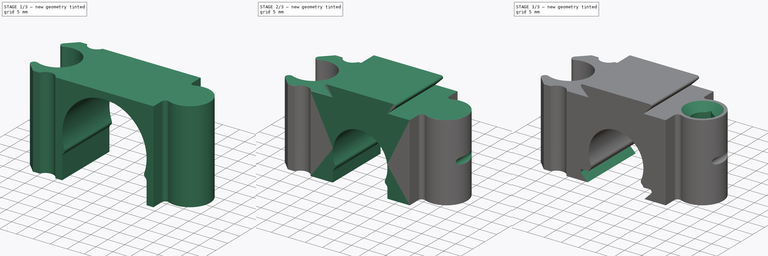
[diagram: build sequence overview — one tinted view per stage of 3, left to right]
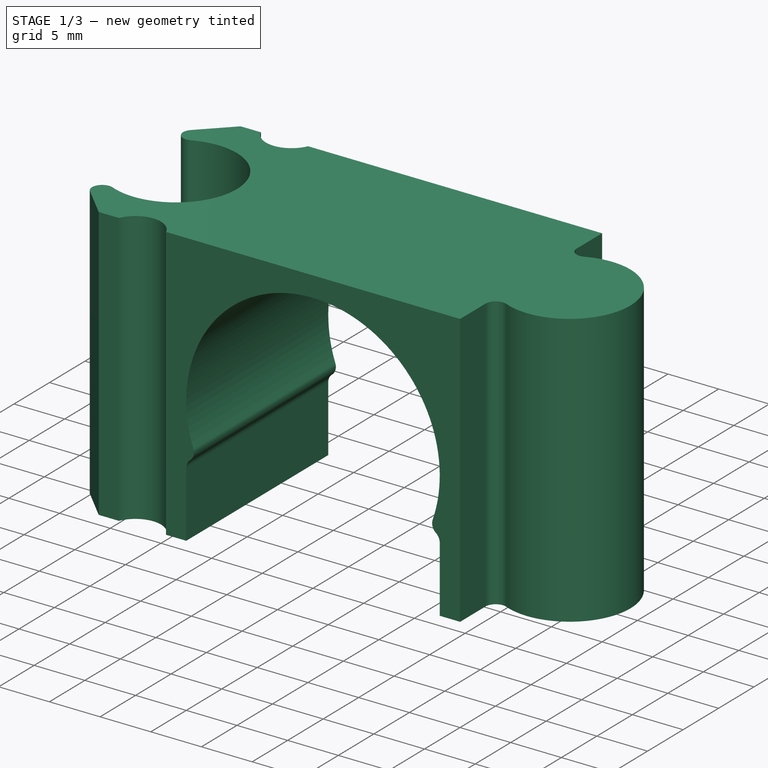
[diagram: stage 1 of 3 — iso view after this stage's code; geometry added in this stage tinted green]
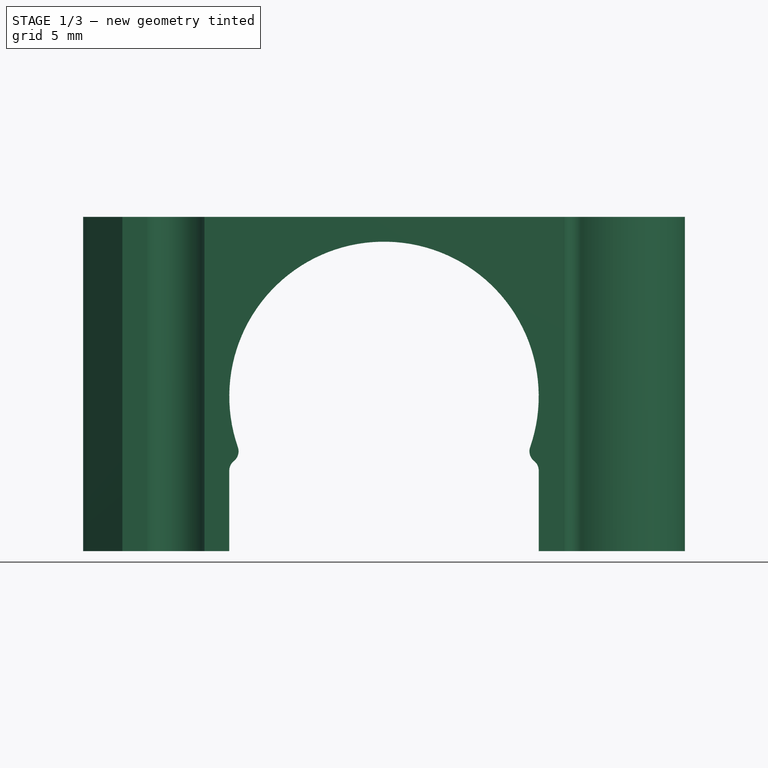
[diagram: stage 1 of 3 — front view after this stage's code; geometry added in this stage tinted green]
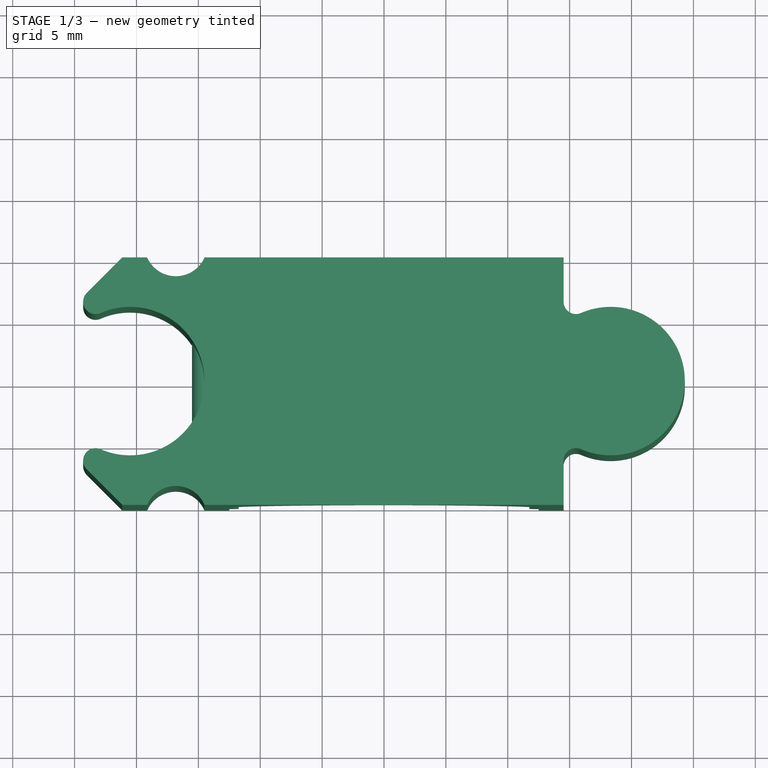
[diagram: stage 1 of 3 — top view after this stage's code; geometry added in this stage tinted green]
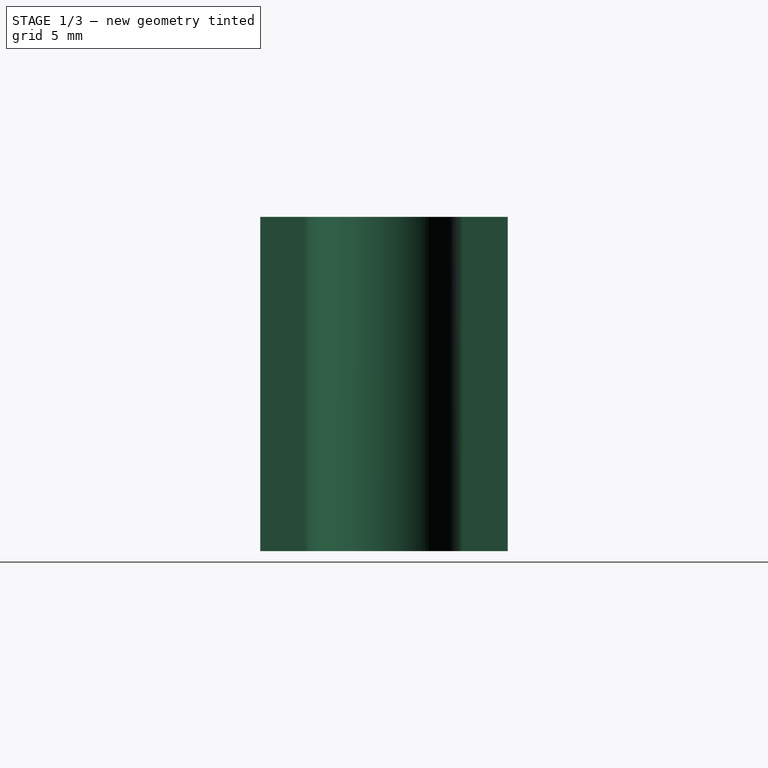
[diagram: stage 1 of 3 — right view after this stage's code; geometry added in this stage tinted green]
FCSTD DOCUMENT  (FreeCAD 1.1R20260108 (Git shallow))
Label: collier stackable
License: Creative Commons Attribution-NonCommercial-ShareAlike 4.0
LicenseURL: https://creativecommons.org/licenses/by-nc-sa/4.0/
objects: Sketcher::SketchObject×8, PartDesign::Pad×4, PartDesign::Pocket×3, App::Point×1, PartDesign::Hole×1, PartDesign::Body×1
note: 41 computed .brp shape members not serialized (recipe doc carries the construction recipe); baked Part::Feature solids carry a one-line shape summary decoded from their .brp

FEATURE [App::Point] Origin001  label="Origine"
  Role = Origin
FEATURE [Sketcher::SketchObject] Sketch
  ArcFitTolerance = 1e-06
  AttachmentSupport = -> [Origin]
  ExternalTypes = [0]
  FullyConstrained = true
  MakeInternals = false
  MapMode = 5
  Placement = pos=(0,0,0) rot=(1,0,0;1.5708rad)
  sketch-geometry (18):
    g0: Circle [constr] CenterX=0 CenterY=12.5 CenterZ=0 NormalX=0 NormalY=0 NormalZ=1 AngleXU=0 Radius=12.5
    g1: LineSegment StartX=-12.5 StartY=0 StartZ=0 EndX=-12.5 EndY=6.50169 EndZ=0
    g2: LineSegment StartX=12.5 StartY=6.50169 StartZ=0 EndX=12.5 EndY=0 EndZ=0
    g3: LineSegment StartX=12.5 StartY=0 StartZ=0 EndX=14.5 EndY=0 EndZ=0
    g4: LineSegment StartX=14.5 StartY=0 StartZ=0 EndX=14.5 EndY=12.5 EndZ=0
    g5: LineSegment StartX=-14.5 StartY=12.5 StartZ=0 EndX=-14.5 EndY=0 EndZ=0
    g6: LineSegment StartX=-14.5 StartY=0 StartZ=0 EndX=-12.5 EndY=0 EndZ=0
    g7: ArcOfCircle CenterX=0 CenterY=12.5 CenterZ=0 NormalX=0 NormalY=0 NormalZ=1 AngleXU=0 Radius=12.5 StartAngle=5.94829 EndAngle=9.75967
    g8: ArcOfCircle CenterX=-11.5 CenterY=6.50169 CenterZ=0 NormalX=0 NormalY=0 NormalZ=1 AngleXU=0 Radius=1 StartAngle=2.24593 EndAngle=3.14159
    g9: ArcOfCircle CenterX=12.75 CenterY=8.06294 CenterZ=0 NormalX=0 NormalY=0 NormalZ=1 AngleXU=0 Radius=1 StartAngle=2.8067 EndAngle=4.03726
    g10: ArcOfCircle CenterX=11.5 CenterY=6.50169 CenterZ=0 NormalX=0 NormalY=0 NormalZ=1 AngleXU=0 Radius=1 StartAngle=0 EndAngle=0.895665
    g11: ArcOfCircle CenterX=-12.75 CenterY=8.06294 CenterZ=0 NormalX=0 NormalY=0 NormalZ=1 AngleXU=0 Radius=1 StartAngle=5.38752 EndAngle=6.61808
    g12: GeomPoint X=11.75 Y=8.06294 Z=0
    g13: GeomPoint X=12.5 Y=12.5 Z=0
    g14: ArcOfCircle [constr] CenterX=0 CenterY=12.5 CenterZ=0 NormalX=0 NormalY=0 NormalZ=1 AngleXU=0 Radius=14.5 StartAngle=0 EndAngle=3.14159
    g15: LineSegment StartX=-14.5 StartY=12.5 StartZ=0 EndX=-14.5 EndY=27 EndZ=0
    g16: LineSegment StartX=-14.5 StartY=27 StartZ=0 EndX=14.5 EndY=27 EndZ=0
    g17: LineSegment StartX=14.5 StartY=27 StartZ=0 EndX=14.5 EndY=12.5 EndZ=0
  constraints (45):
    c: Diameter(g0) = 25
    c: PointOnObject(g0,g-2)
    c: Tangent(g0,g-1)
    c: PointOnObject(g1,g-1)
    c: Coincident(g2,g3)
    c: PointOnObject(g3,g-1)
    c: Coincident(g3,g4)
    c: Vertical(g4)
    c: Coincident(g5,g6)
    c: Coincident(g6,g1)
    c: Vertical(g5)
    c: Symmetric(g5,g3,g-2)
    c: Symmetric(g1,g2,g-2)
    c: Coincident(g7,g0)
    c: Horizontal(g7,g7)
    c: Vertical(g2)
    c: Vertical(g1)
    c: Tangent(g8,g1) = 1.5708
    c: Tangent(g10,g2) = 1.5708
    c: Tangent(g10,g9) = 1.5708
    c: Tangent(g9,g7) = 1.5708
    c: Symmetric(g8,g10,g-2)
    c: Equal(g8,g11)
    c: Tangent(g11,g8) = 1.5708
    c: Tangent(g11,g7) = 1.5708
    c: Equal(g7,g0)
    c: Tangent(g7,g1)
    c: PointOnObject(g12,g9)
    c: Horizontal(g12,g9)
    c: PointOnObject(g13,g7)
    c: Horizontal(g13,g0)
    c: DistanceX(g12,g13) = 0.75
    c: Radius(g11) = 1
    c: DistanceX(g5,g4) = 29
    c: Coincident(g14,g0)
    c: Coincident(g14,g5)
    c: Tangent(g14,g4) = -1.5708
    c: Coincident(g5,g15)
    c: Vertical(g15)
    c: Coincident(g15,g16)
    c: Horizontal(g16)
    c: Tangent(g16,g14)
    c: Coincident(g16,g17)
    c: Coincident(g17,g4)
    c: Vertical(g17)
FEATURE [PartDesign::Pad] Pad
  Direction = (0,-1,2e-16)
  Length = 20
  Length2 = 10
  Profile = -> Sketch
  ReferenceAxis = -> Sketch [N_Axis]
  Refine = true
  SideType = 2
  Suppressed = false
  Type = 0
  Type2 = 0
FEATURE [Sketcher::SketchObject] Sketch001
  ArcFitTolerance = 1e-06
  AttachmentSupport = -> [Origin]
  ExternalGeometry = -> [Pad]
  ExternalTypes = [0,0]
  FullyConstrained = true
  MakeInternals = false
  MapMode = 5
  sketch-geometry (22):
    g0: ArcOfCircle CenterX=18.3076 CenterY=0 CenterZ=0 NormalX=0 NormalY=0 NormalZ=1 AngleXU=0 Radius=6 StartAngle=4.30125 EndAngle=8.26512
    g1: LineSegment [constr] StartX=-24.3076 StartY=10 StartZ=0 EndX=-24.3076 EndY=6.41667 EndZ=0
    g2: ArcOfCircle CenterX=-23.3076 CenterY=6.41667 CenterZ=0 NormalX=0 NormalY=0 NormalZ=1 AngleXU=0 Radius=1 StartAngle=3.14159 EndAngle=5.12353
    g3: ArcOfCircle CenterX=-20.51 CenterY=0 CenterZ=0 NormalX=0 NormalY=0 NormalZ=1 AngleXU=0 Radius=6 StartAngle=4.30125 EndAngle=8.26512
    g4: LineSegment [constr] StartX=-24.3076 StartY=10 StartZ=0 EndX=-14.5 EndY=10 EndZ=0
    g5: ArcOfCircle CenterX=-23.3076 CenterY=6.41667 CenterZ=0 NormalX=0 NormalY=0 NormalZ=1 AngleXU=0 Radius=1 StartAngle=2.35619 EndAngle=3.14159
    g6: Circle [constr] CenterX=18.3076 CenterY=0 CenterZ=0 NormalX=0 NormalY=0 NormalZ=1 AngleXU=0 Radius=4
    g7: ArcOfCircle CenterX=-23.3076 CenterY=-6.41667 CenterZ=0 NormalX=0 NormalY=0 NormalZ=1 AngleXU=0 Radius=1 StartAngle=1.15966 EndAngle=3.92699
    g8: GeomPoint X=-20.51 Y=6 Z=0
    g9: LineSegment StartX=-24.0147 StartY=7.12377 StartZ=0 EndX=-21.1384 EndY=10 EndZ=0
    g10: LineSegment StartX=-21.1384 StartY=10 StartZ=0 EndX=-19.1384 EndY=10 EndZ=0
    g11: LineSegment StartX=-24.0147 StartY=-7.12377 StartZ=0 EndX=-21.1384 EndY=-10 EndZ=0
    g12: LineSegment [constr] StartX=-21.1384 StartY=-10 StartZ=0 EndX=-14.5 EndY=-10 EndZ=0
    g13: ArcOfCircle CenterX=15.51 CenterY=6.41667 CenterZ=0 NormalX=0 NormalY=0 NormalZ=1 AngleXU=0 Radius=1 StartAngle=3.1416 EndAngle=5.12353
    g14: ArcOfCircle CenterX=15.51 CenterY=-6.41667 CenterZ=0 NormalX=0 NormalY=0 NormalZ=1 AngleXU=0 Radius=1 StartAngle=1.15966 EndAngle=3.14159
    g15: LineSegment StartX=14.5 StartY=10 StartZ=0 EndX=14.51 EndY=10 EndZ=0
    g16: LineSegment StartX=14.51 StartY=10 StartZ=0 EndX=14.51 EndY=6.41666 EndZ=0
    g17: LineSegment StartX=14.51 StartY=-6.41667 StartZ=0 EndX=14.51 EndY=-10 EndZ=0
    g18: LineSegment StartX=14.51 StartY=-10 StartZ=0 EndX=14.5 EndY=-10 EndZ=0
    g19: ArcOfCircle CenterX=-16.8192 CenterY=11 CenterZ=0 NormalX=0 NormalY=0 NormalZ=1 AngleXU=0 Radius=2.52563 StartAngle=3.54869 EndAngle=5.87609
    g20: LineSegment StartX=-21.1384 StartY=-10 StartZ=0 EndX=-19.1384 EndY=-10 EndZ=0
    g21: ArcOfCircle CenterX=-16.8192 CenterY=-11 CenterZ=0 NormalX=0 NormalY=0 NormalZ=1 AngleXU=0 Radius=2.52563 StartAngle=0.407092 EndAngle=2.7345
  constraints (60):
    c: Radius(g0) = 6
    c: Vertical(g1)
    c: Tangent(g1,g2) = -1.5708
    c: Tangent(g2,g3) = 1.5708
    c: Coincident(g4,g1)
    c: Horizontal(g4)
    c: Equal(g0,g3)
    c: Coincident(g4,g-3)
    c: Coincident(g5,g2)
    c: Coincident(g5,g1)
    c: Horizontal(g3,g0)
    c: PointOnObject(g3,g-1)
    c: Coincident(g6,g0)
    c: Distance(g6,g0) = 2
    c: Diameter(g6) = 8
    c: Symmetric(g2,g7,g-1)
    c: Tangent(g7,g3) = 1.5708
    c: PointOnObject(g8,g3)
    c: Vertical(g3,g8)
    c: DistanceY(g2,g8) = 0.5
    c: PointOnObject(g9,g4)
    c: Coincident(g10,g9)
    c: Tangent(g7,g11) = -1.5708
    c: Coincident(g11,g12)
    c: Coincident(g12,g-3)
    c: Tangent(g9,g5) = 1.5708
    c: Vertical(g11,g9)
    c: Angle(g-1,g9) = 0.785398
    c: Tangent(g13,g0) = 1.5708
    c: Tangent(g14,g0) = 1.5708
    c: Equal(g14,g13)
    c: Equal(g13,g2)
    c: Distance(g3,g-3) = 0.01
    c: Coincident(g-4,g15)
    c: Coincident(g15,g16)
    c: Coincident(g16,g13)
    c: Vertical(g16)
    c: Tangent(g14,g17) = -1.5708
    c: Tangent(g17,g13)
    c: Coincident(g17,g18)
    c: Coincident(g18,g-4)
    c: Vertical(g14,g13)
    c: Vertical(g17)
    c: Horizontal(g15)
    c: Distance(g18,g18) = 0.01
    c: Horizontal(g13,g2)
    c: Radius(g13) = 1
    c: Horizontal(g18)
    c: Coincident(g19,g4)
    c: Coincident(g19,g10)
    c: Horizontal(g10)
    c: Distance(g10,g10) = 2
    c: Distance(g19,g4) = 1
    c: Coincident(g11,g20)
    c: PointOnObject(g20,g12)
    c: Vertical(g20,g10)
    c: Coincident(g21,g20)
    c: Coincident(g21,g12)
    c: Equal(g19,g21)
    c: Horizontal(g12)
FEATURE [PartDesign::Pad] Pad001
  BaseFeature = -> Pad
  Direction = (0,0,1)
  Length = 20
  Length2 = 10
  Profile = -> Sketch001
  ReferenceAxis = -> Sketch001 [N_Axis]
  Refine = true
  SideType = 0
  Suppressed = false
  Type = 3
  Type2 = 0
  UpToFace = -> Pad [Face11]
FEATURE [Sketcher::SketchObject] Sketch003
  ArcFitTolerance = 1e-06
  AttachmentSupport = -> [Origin]
  ExternalGeometry = -> [Pad001]
  ExternalTypes = [0,1]
  FullyConstrained = true
  MakeInternals = false
  MapMode = 5
  Placement = pos=(0,0,0) rot=(1,0,0;1.5708rad)
  sketch-geometry (3):
    g0: LineSegment [constr] StartX=-14.51 StartY=27 StartZ=0 EndX=-14.51 EndY=0 EndZ=0
    g1: LineSegment StartX=-14.51 StartY=14.5 StartZ=0 EndX=-14.51 EndY=12.5 EndZ=0
    g2: ArcOfCircle CenterX=-14.51 CenterY=13.5 CenterZ=0 NormalX=0 NormalY=0 NormalZ=1 AngleXU=0 Radius=1 StartAngle=1.5708 EndAngle=4.71239
  constraints (9):
    c: PointOnObject(g0,g-1)
    c: Vertical(g0)
    c: PointOnObject(g1,g0)
    c: Radius(g2) = 1
    c: Vertical(g1)
    c: Coincident(g1,g2)
    c: Symmetric(g0,g0,g2)
    c: Coincident(g1,g2)
    c: Coincident(g0,g-4)
FEATURE [PartDesign::Pad] Pad002
  BaseFeature = -> Pad001
  Direction = (0,-1,2e-16)
  Length = 5
  Length2 = 10
  Profile = -> Sketch003
  ReferenceAxis = -> Sketch003 [N_Axis]
  Refine = true
  SideType = 2
  Suppressed = false
  Type = 1
  Type2 = 0
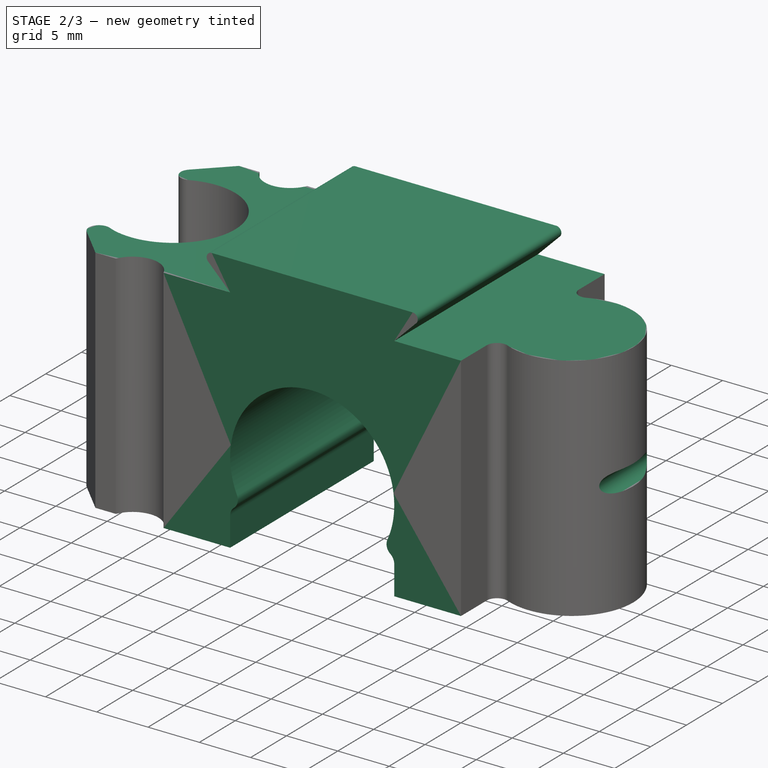
[diagram: stage 2 of 3 — iso view after this stage's code; geometry added in this stage tinted green]
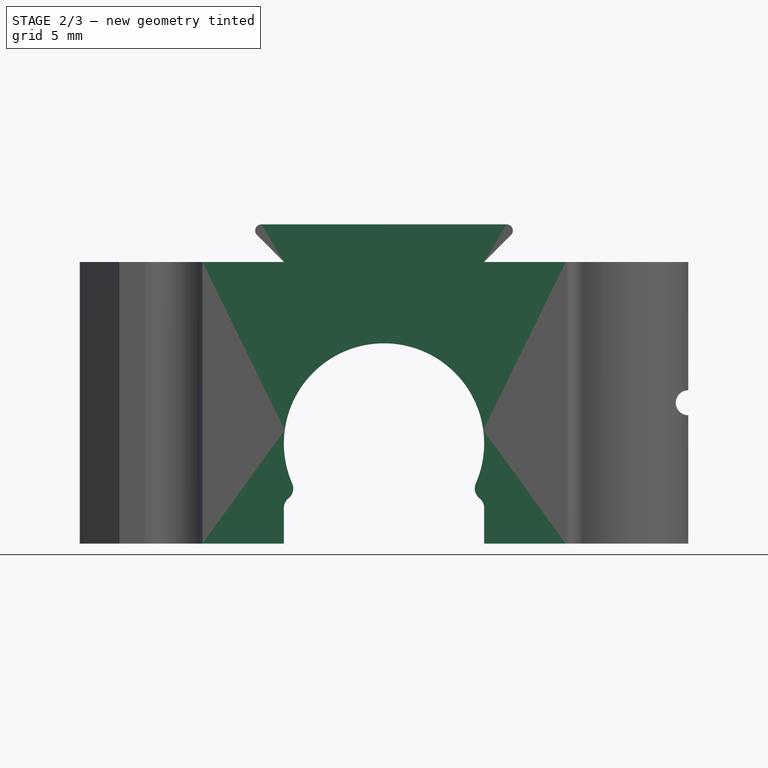
[diagram: stage 2 of 3 — front view after this stage's code; geometry added in this stage tinted green]
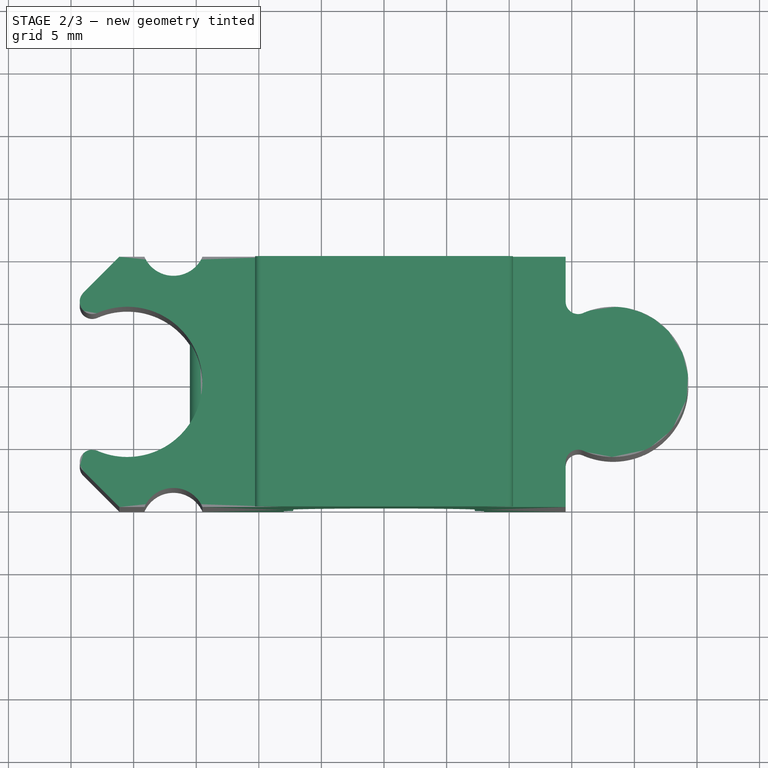
[diagram: stage 2 of 3 — top view after this stage's code; geometry added in this stage tinted green]
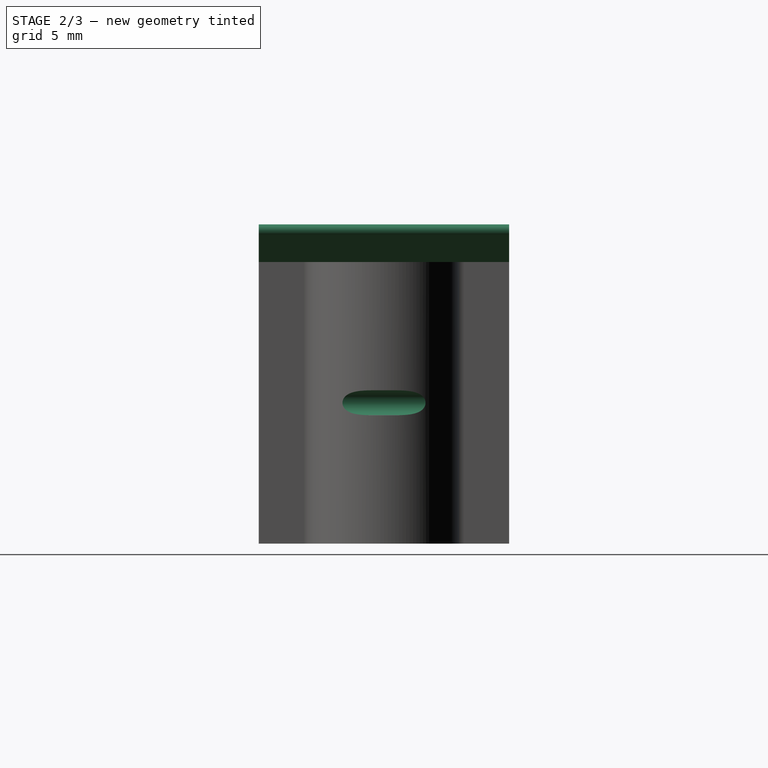
[diagram: stage 2 of 3 — right view after this stage's code; geometry added in this stage tinted green]
FEATURE [Sketcher::SketchObject] Sketch004
  ArcFitTolerance = 1e-06
  AttachmentSupport = -> [Origin]
  ExternalGeometry = -> [Pad002,Sketch003]
  ExternalTypes = [1,1]
  FullyConstrained = true
  MakeInternals = false
  MapMode = 5
  Placement = pos=(0,0,0) rot=(1,0,0;1.5708rad)
  sketch-geometry (3):
    g0: LineSegment StartX=24.3076 StartY=14.5 StartZ=0 EndX=24.3076 EndY=12.5 EndZ=0
    g1: LineSegment [constr] StartX=24.3076 StartY=27 StartZ=0 EndX=24.3076 EndY=0 EndZ=0
    g2: ArcOfCircle CenterX=24.3076 CenterY=13.5 CenterZ=0 NormalX=0 NormalY=0 NormalZ=1 AngleXU=0 Radius=1 StartAngle=1.5708 EndAngle=4.71239
  constraints (10):
    c: Vertical(g0)
    c: PointOnObject(g1,g-1)
    c: Vertical(g1)
    c: PointOnObject(g0,g1)
    c: Coincident(g-3,g1)
    c: PointOnObject(g2,g0)
    c: Coincident(g2,g0)
    c: Coincident(g2,g0)
    c: Equal(g-4,g2)
    c: Horizontal(g2,g-4)
FEATURE [PartDesign::Pocket] Pocket
  BaseFeature = -> Pad002
  Direction = (0,1,-2e-16)
  Length = 5
  Length2 = 5
  Profile = -> Sketch004
  ReferenceAxis = -> Sketch004 [N_Axis]
  Refine = true
  SideType = 2
  Suppressed = false
  Type = 1
  Type2 = 0
FEATURE [Sketcher::SketchObject] Sketch005
  ArcFitTolerance = 1e-06
  AttachmentSupport = -> [Origin]
  ExternalGeometry = -> [Pad001]
  ExternalTypes = [0,0,0]
  FullyConstrained = true
  MakeInternals = false
  MapMode = 5
  Placement = pos=(0,0,0) rot=(1,0,0;1.5708rad)
  sketch-geometry (6):
    g0: LineSegment StartX=-8 StartY=22.5 StartZ=0 EndX=-10.1464 EndY=24.6464 EndZ=0
    g1: ArcOfCircle CenterX=-9.79289 CenterY=25 CenterZ=0 NormalX=0 NormalY=0 NormalZ=1 AngleXU=0 Radius=0.5 StartAngle=1.5708 EndAngle=3.92699
    g2: LineSegment StartX=-9.79289 StartY=25.5 StartZ=0 EndX=9.79289 EndY=25.5 EndZ=0
    g3: ArcOfCircle CenterX=9.79289 CenterY=25 CenterZ=0 NormalX=0 NormalY=0 NormalZ=1 AngleXU=0 Radius=0.5 StartAngle=5.49779 EndAngle=7.85398
    g4: LineSegment StartX=10.1464 StartY=24.6464 StartZ=0 EndX=8 EndY=22.5 EndZ=0
    g5: LineSegment StartX=8 StartY=22.5 StartZ=0 EndX=-8 EndY=22.5 EndZ=0
  constraints (14):
    c: Tangent(g0,g1) = 1.5708
    c: Tangent(g1,g2) = 1.5708
    c: Tangent(g2,g3) = 1.5708
    c: Tangent(g3,g4) = 1.5708
    c: Coincident(g4,g5)
    c: Coincident(g5,g0)
    c: Horizontal(g2)
    c: Symmetric(g1,g3,g-2)
    c: Symmetric(g0,g4,g-2)
    c: Angle(g-3,g4) = 0.785398
    c: Radius(g3) = 0.5
    c: Distance(g1,g-3) = 3
    c: Horizontal(g-3,g0)
    c: Vertical(g0,g-4)
FEATURE [PartDesign::Pad] Pad003
  BaseFeature = -> Pocket
  Direction = (0,-1,2e-16)
  Length = 10
  Length2 = 10
  Profile = -> Sketch005
  ReferenceAxis = -> Sketch005 [N_Axis]
  Refine = true
  SideType = 2
  Suppressed = false
  Type = 3
  Type2 = 0
  UpToFace = -> Pocket [Face5]
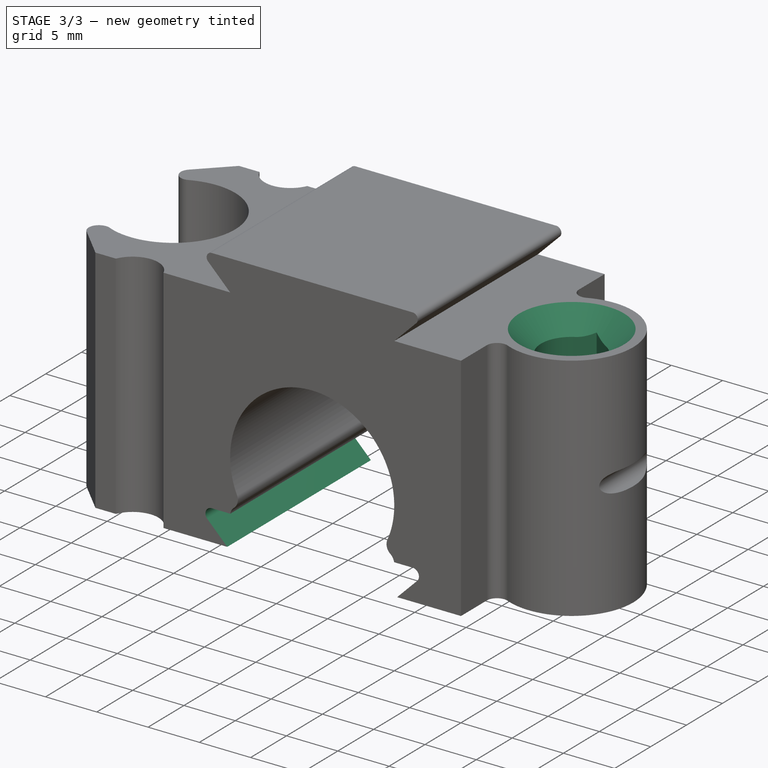
[diagram: stage 3 of 3 — iso view after this stage's code; geometry added in this stage tinted green]
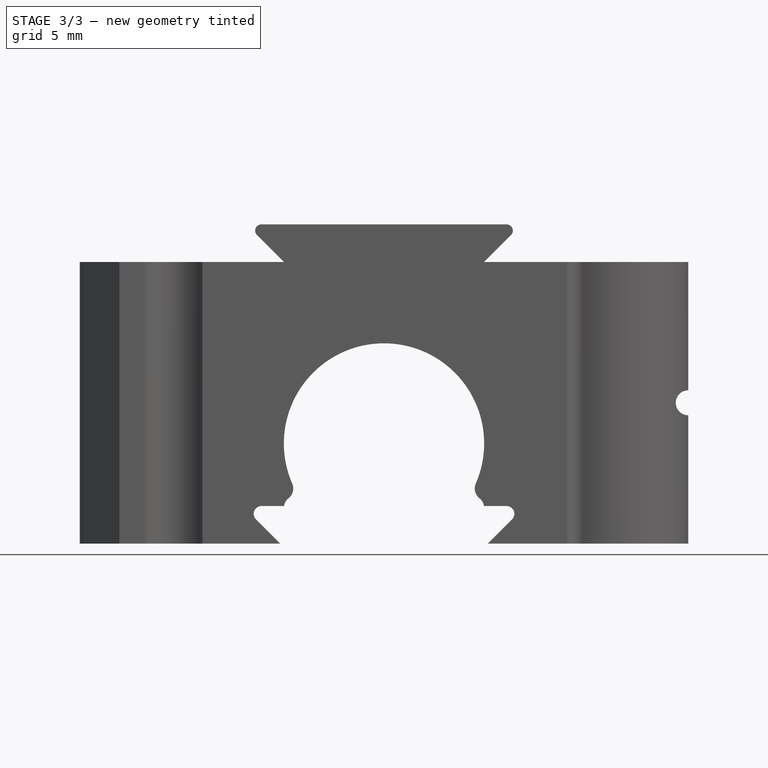
[diagram: stage 3 of 3 — front view after this stage's code; geometry added in this stage tinted green]
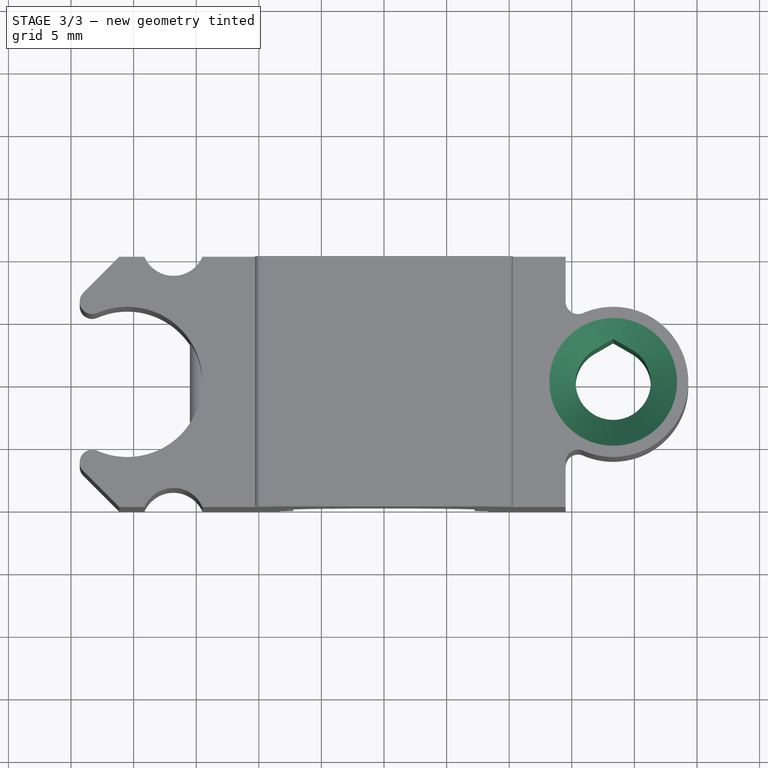
[diagram: stage 3 of 3 — top view after this stage's code; geometry added in this stage tinted green]
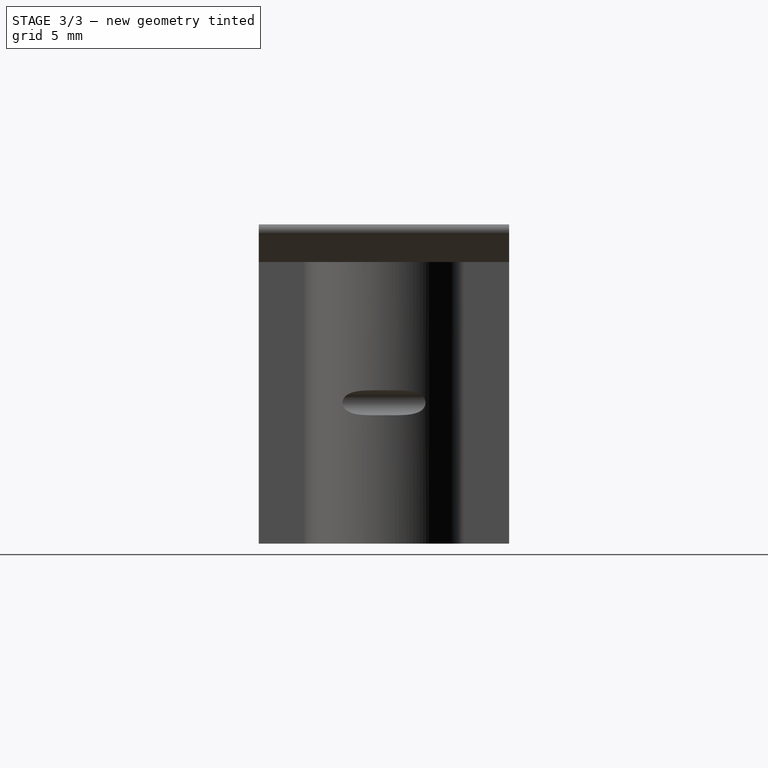
[diagram: stage 3 of 3 — right view after this stage's code; geometry added in this stage tinted green]
FEATURE [Sketcher::SketchObject] Sketch006
  ArcFitTolerance = 1e-06
  AttachmentSupport = -> [Origin]
  ExternalGeometry = -> [Pad003]
  ExternalTypes = [0,0,0]
  FullyConstrained = true
  MakeInternals = false
  MapMode = 5
  Placement = pos=(0,0,0) rot=(1,0,0;1.5708rad)
  sketch-geometry (11):
    g0: LineSegment StartX=-9.79289 StartY=3 StartZ=0 EndX=9.79289 EndY=3 EndZ=0
    g1: ArcOfCircle [constr] CenterX=9.79289 CenterY=2.5 CenterZ=0 NormalX=0 NormalY=0 NormalZ=1 AngleXU=0 Radius=0.5 StartAngle=5.49779 EndAngle=7.85398
    g2: LineSegment [constr] StartX=10.1464 StartY=2.14645 StartZ=0 EndX=8 EndY=0 EndZ=0
    g3: LineSegment [constr] StartX=8 StartY=0 StartZ=0 EndX=-8 EndY=0 EndZ=0
    g4: LineSegment [constr] StartX=-8 StartY=0 StartZ=0 EndX=-10.1464 EndY=2.14645 EndZ=0
    g5: ArcOfCircle [constr] CenterX=-9.79289 CenterY=2.5 CenterZ=0 NormalX=0 NormalY=0 NormalZ=1 AngleXU=0 Radius=0.5 StartAngle=1.5708 EndAngle=3.92699
    g6: ArcOfCircle CenterX=-9.79289 CenterY=2.38284 CenterZ=0 NormalX=0 NormalY=0 NormalZ=1 AngleXU=0 Radius=0.617157 StartAngle=1.5708 EndAngle=3.92699
    g7: LineSegment StartX=-10.2293 StartY=1.94645 StartZ=0 EndX=-8.28284 EndY=0 EndZ=0
    g8: ArcOfCircle CenterX=9.79289 CenterY=2.38284 CenterZ=0 NormalX=0 NormalY=0 NormalZ=1 AngleXU=0 Radius=0.617157 StartAngle=5.49779 EndAngle=7.85398
    g9: LineSegment StartX=10.2293 StartY=1.94645 StartZ=0 EndX=8.28284 EndY=0 EndZ=0
    g10: LineSegment StartX=-8.28284 StartY=0 StartZ=0 EndX=8.28284 EndY=0 EndZ=0
  constraints (27):
    c: Horizontal(g0)
    c: Tangent(g0,g1) = 1.5708
    c: Tangent(g1,g2) = 1.5708
    c: Coincident(g2,g3)
    c: Horizontal(g3)
    c: Coincident(g3,g4)
    c: Tangent(g4,g5) = 1.5708
    c: Coincident(g5,g0)
    c: Equal(g1,g5)
    c: Equal(g5,g-5)
    c: Equal(g4,g2)
    c: Equal(g2,g-4)
    c: Equal(g0,g-3)
    c: Symmetric(g5,g1,g-2)
    c: Vertical(g2,g-4)
    c: PointOnObject(g2,g-1)
    c: Tangent(g6,g0) = 1.5708
    c: Tangent(g7,g6) = -1.5708
    c: Parallel(g7,g4)
    c: PointOnObject(g7,g-1)
    c: Distance(g6,g4) = 0.2
    c: Coincident(g8,g0)
    c: Coincident(g10,g7)
    c: Coincident(g10,g9)
    c: Symmetric(g8,g6,g-2)
    c: Symmetric(g9,g7,g-2)
    c: Tangent(g9,g8) = 1.5708
FEATURE [PartDesign::Pocket] Pocket001
  BaseFeature = -> Pad003
  Direction = (0,1,-2e-16)
  Length = 5
  Length2 = 5
  Profile = -> Sketch006
  ReferenceAxis = -> Sketch006 [N_Axis]
  Refine = true
  SideType = 2
  Suppressed = false
  Type = 1
  Type2 = 0
FEATURE [Sketcher::SketchObject] Sketch007
  ArcFitTolerance = 1e-06
  AttachmentSupport = -> [Pocket001]
  ExternalGeometry = -> [Pocket001]
  ExternalTypes = [0]
  FullyConstrained = true
  MakeInternals = false
  MapMode = 5
  Placement = pos=(0,6.5e-15,22.5) rot=(0,0,1;0rad)
  sketch-geometry (1):
    g0: Circle CenterX=18.3076 CenterY=-6.4e-15 CenterZ=0 NormalX=0 NormalY=0 NormalZ=1 AngleXU=0 Radius=2.5
  constraints (2):
    c: Diameter(g0) = 5
    c: Coincident(g0,g-3)
FEATURE [PartDesign::Hole] Hole
  BaseFeature = -> Pocket001
  BaseProfileType = 7
  CustomThreadClearance = 0
  Depth = 124.186
  DepthType = 1
  Diameter = 6
  DrillForDepth = false
  DrillPoint = 1
  DrillPointAngle = 118
  HoleCutCountersinkAngle = 90
  HoleCutCustomValues = false
  HoleCutDepth = 5.1
  HoleCutDiameter = 10.2
  HoleCutType = 2
  ModelThread = false
  Profile = -> Sketch007
  Refine = true
  Suppressed = false
  Tapered = false
  TaperedAngle = 90
  TeardropAngle = 120
  TeardropRotation = 90
  ThreadClass = 0
  ThreadDepth = 124.186
  ThreadDepthType = 0
  ThreadDiameter = 6
  ThreadDirection = 0
  ThreadFit = 0
  ThreadSize = 0
  ThreadType = 0
  Threaded = false
  UseCustomThreadClearance = false
FEATURE [Sketcher::SketchObject] Sketch007_Teardrops
  ArcFitTolerance = 1e-06
  AttachmentSupport = -> [Sketch007]
  ExternalTypes = [0]
  FullyConstrained = true
  MakeInternals = false
  MapMode = 2
  Placement = pos=(0,6.5e-15,22.5) rot=(0,0,1;0rad)
  expr: Constraints[5] = Sketch007.Geometry[0].Center.x * 1 mm
  expr: Constraints[6] = Sketch007.Geometry[0].Center.y * 1 mm
  expr: Constraints[7] = Hole.Diameter
  expr: Constraints[8] = Hole.TeardropAngle
  expr: Constraints[9] = Hole.TeardropRotation
  sketch-geometry (4):
    g0: ArcOfCircle CenterX=18.3076 CenterY=-6.4e-15 CenterZ=0 NormalX=0 NormalY=0 NormalZ=1 AngleXU=0 Radius=3 StartAngle=2.0944 EndAngle=7.33038
    g1: LineSegment StartX=16.8076 StartY=2.59808 StartZ=0 EndX=18.3076 EndY=3.4641 EndZ=0
    g2: LineSegment StartX=19.8076 StartY=2.59808 StartZ=0 EndX=18.3076 EndY=3.4641 EndZ=0
    g3: LineSegment [constr] StartX=18.3076 StartY=-6.4e-15 StartZ=0 EndX=18.3076 EndY=3.4641 EndZ=0
  constraints (10):
    c: Coincident(g1,g2)
    c: Coincident(g1,g3)
    c: Coincident(g0,g3)
    c: Tangent(g0,g1) = 1.5708
    c: Tangent(g0,g2) = -1.5708
    c: DistanceX(g0) = 18.3076
    c: DistanceY(g0) = -6.4e-15
    c: Diameter(g0) = 6
    c: Angle(g1,g2) = 2.0944
    c: Angle(g3) = 1.5708
FEATURE [PartDesign::Pocket] Hole_Teardrops
  BaseFeature = -> Hole
  Direction = (0,0,-1)
  Length = 124.186
  Length2 = 5
  Profile = -> Sketch007_Teardrops
  ReferenceAxis = -> Sketch007_Teardrops [N_Axis]
  Refine = true
  SideType = 0
  Suppressed = false
  Type = 1
  Type2 = 0
  expr: Length = Hole.Depth
  expr: Type = Hole.DepthType
FEATURE [PartDesign::Body] Body  label="Corps"
  AllowCompound = false
  Group = -> [Sketch,Pad,Sketch001,Pad001,Sketch003,Pad002,Sketch004,Pocket,Sketch005,Pad003,Sketch006,Pocket001,Sketch007,Hole,Sketch007_Teardrops,Hole_Teardrops]
  Origin = -> Origin
  Tip = -> Hole_Teardrops
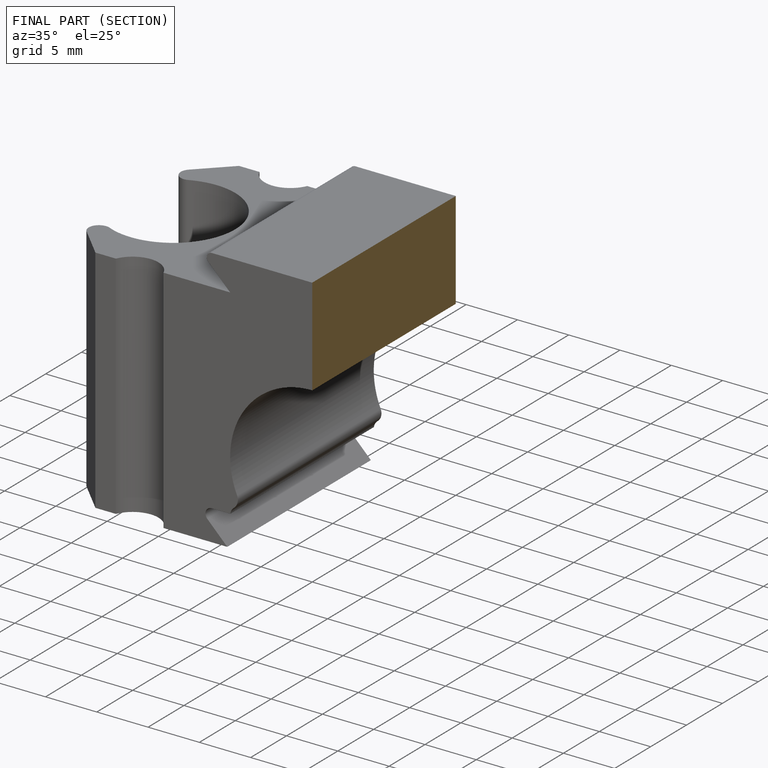
[diagram: finished part — half-section view (interior)]
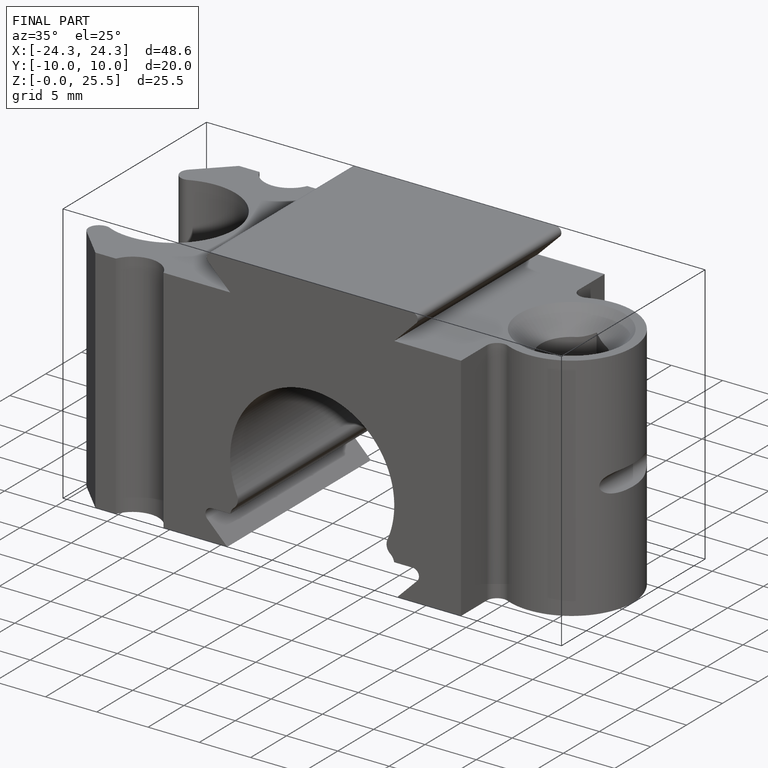
[diagram: finished part — iso view with bounding-box wireframe]
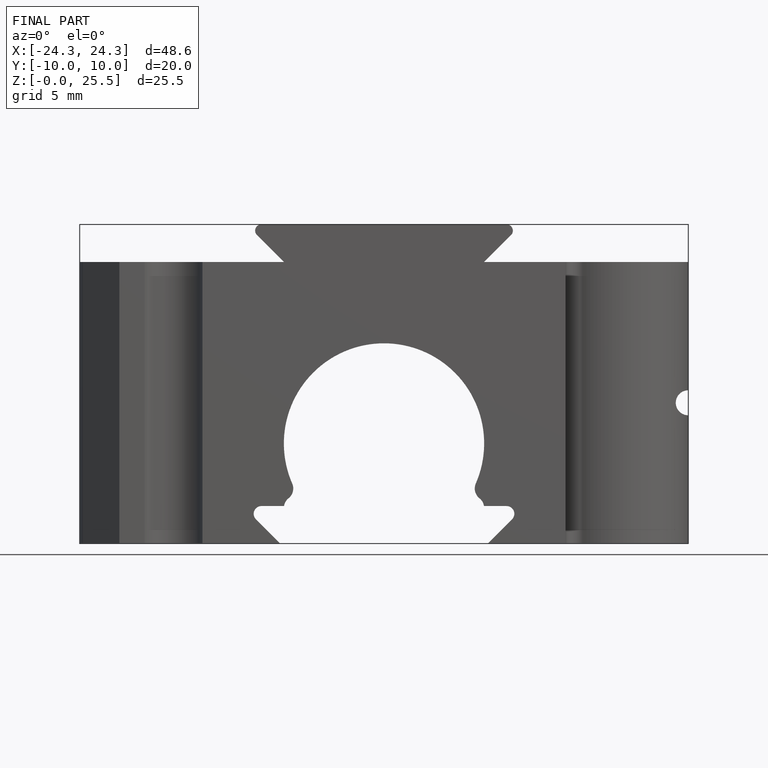
[diagram: finished part — front view with bounding-box wireframe]
